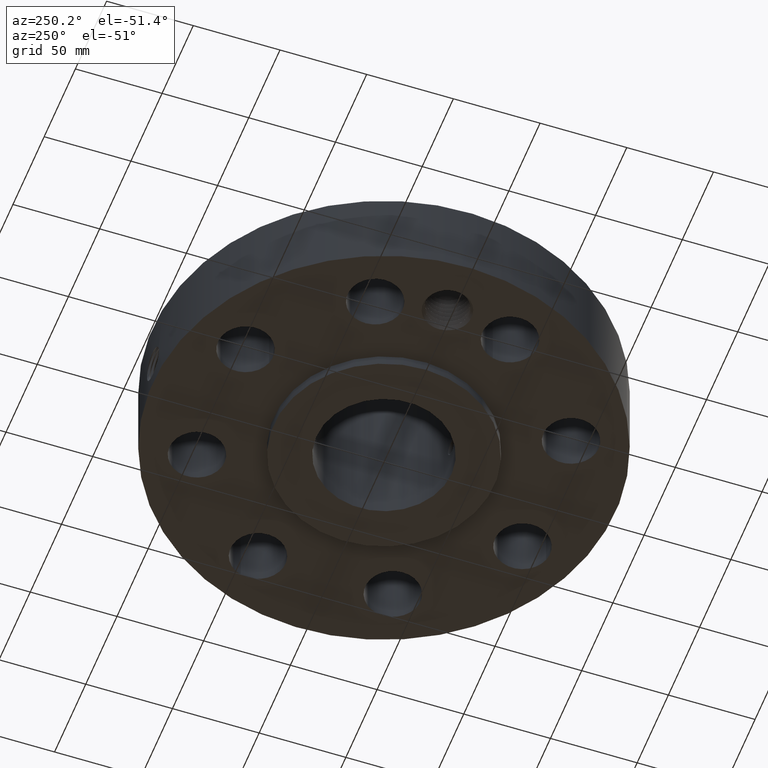
[diagram: clean part render]
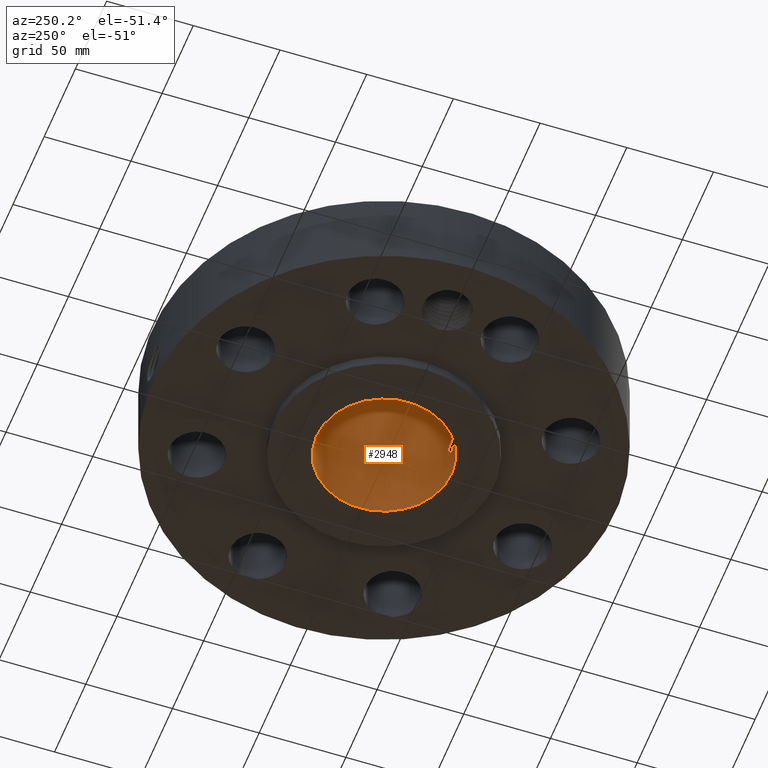
[diagram: same view with one face highlighted and labeled with its STEP entity id]
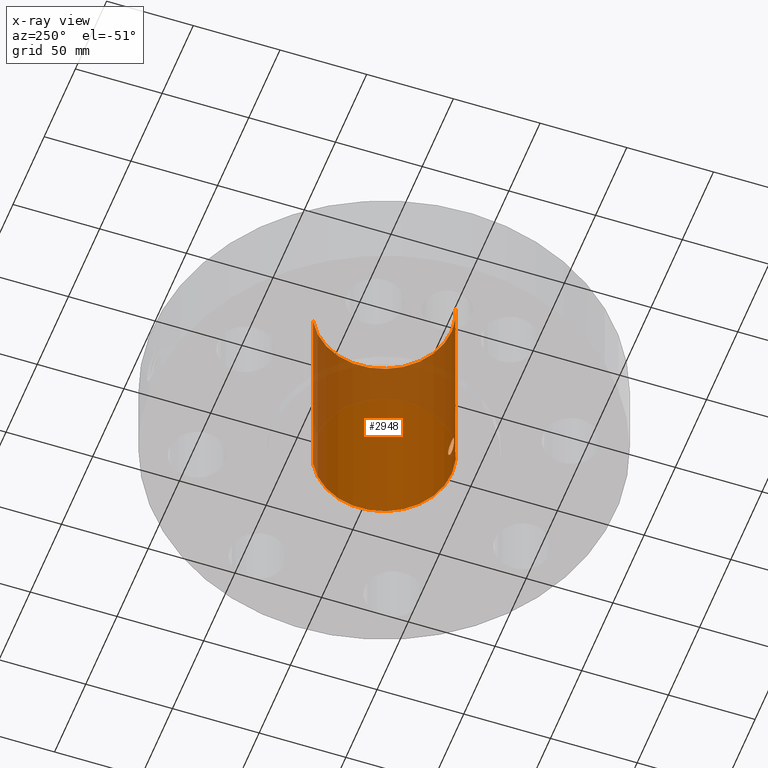
[diagram: x-ray of the same camera — body ghosted, the highlighted face saturated]
A machine part, auxiliary view. The second image highlights one B-rep face of the part: STEP entity #2948.
The next image is the same camera in x-ray: the body ghosted, the highlighted face saturated — about 38% of this face is hidden behind the body in this view.
In plain terms, the highlighted cylindrical surface (partial cylindrical patch) has radius 38.9636 mm, axis along (0, 0, -1).
Its self-contained STEP definition (entity closure, byte-faithful):
#2161=AXIS2_PLACEMENT_3D('Circle Axis2P3D',#2159,#2160,$) ;
#2879=AXIS2_PLACEMENT_3D('Cylinder Axis2P3D',#2876,#2877,#2878) ;
#2883=AXIS2_PLACEMENT_3D('Circle Axis2P3D',#2881,#2882,$) ;
#2159=CARTESIAN_POINT('Axis2P3D Location',(0.,0.,0.)) ;
#2163=CARTESIAN_POINT('Vertex',(0.735438776222,1.34621164995,-5.31508345647E-015)) ;
#2165=CARTESIAN_POINT('Vertex',(-0.735438776222,-1.34621164995,-5.31508345647E-015)) ;
#2876=CARTESIAN_POINT('Axis2P3D Location',(0.,0.,2.43500000001)) ;
#2881=CARTESIAN_POINT('Axis2P3D Location',(0.,0.,4.87000000002)) ;
#2885=CARTESIAN_POINT('Vertex',(0.735438776222,1.34621164995,4.87000000002)) ;
#2887=CARTESIAN_POINT('Vertex',(-0.735438776222,-1.34621164995,4.87000000002)) ;
#2890=CARTESIAN_POINT('Line Origine',(0.735438776222,1.34621164995,2.43500000001)) ;
#2895=CARTESIAN_POINT('Line Origine',(-0.735438776222,-1.34621164995,2.43500000001)) ;
#2907=CARTESIAN_POINT('Control Point',(0.164546730355,-1.52514929549,0.850107711515)) ;
#2908=CARTESIAN_POINT('Control Point',(0.153730987742,-1.52631619443,0.830309627461)) ;
#2909=CARTESIAN_POINT('Control Point',(0.1399431989,-1.52770675216,0.812148390875)) ;
#2910=CARTESIAN_POINT('Control Point',(0.123507748955,-1.52917958204,0.796208112031)) ;
#2911=CARTESIAN_POINT('Control Point',(0.0771300553233,-1.53257507292,0.763187347526)) ;
#2912=CARTESIAN_POINT('Control Point',(0.021117456955,-1.53443807468,0.74899752833)) ;
#2913=CARTESIAN_POINT('Control Point',(-0.0139156713078,-1.53452842349,0.74833651336)) ;
#2914=CARTESIAN_POINT('Control Point',(-0.0704492146842,-1.53291709887,0.760416237495)) ;
#2915=CARTESIAN_POINT('Control Point',(-0.118051609561,-1.52962023944,0.791691344334)) ;
#2916=CARTESIAN_POINT('Control Point',(-0.135083668777,-1.52815406454,0.807020195614)) ;
#2917=CARTESIAN_POINT('Control Point',(-0.174443725803,-1.52429835588,0.855045646798)) ;
#2918=CARTESIAN_POINT('Control Point',(-0.192228358507,-1.52190251018,0.916011178549)) ;
#2919=CARTESIAN_POINT('Control Point',(-0.192989830594,-1.52179279368,0.956827431149)) ;
#2920=CARTESIAN_POINT('Control Point',(-0.183177815633,-1.52313920758,0.995788315649)) ;
#2921=CARTESIAN_POINT('Control Point',(-0.164546730355,-1.52514929549,1.02989228849)) ;
#2922=CARTESIAN_POINT('Vertex',(0.164546730355,-1.52514929549,0.850107711515)) ;
#2924=CARTESIAN_POINT('Vertex',(-0.164546730355,-1.52514929549,1.02989228849)) ;
#2928=CARTESIAN_POINT('Control Point',(-0.164546730355,-1.52514929549,1.02989228849)) ;
#2929=CARTESIAN_POINT('Control Point',(-0.153730987742,-1.52631619443,1.04969037255)) ;
#2930=CARTESIAN_POINT('Control Point',(-0.1399431989,-1.52770675216,1.06785160913)) ;
#2931=CARTESIAN_POINT('Control Point',(-0.123507748954,-1.52917958204,1.08379188798)) ;
#2932=CARTESIAN_POINT('Control Point',(-0.0771300553212,-1.53257507292,1.11681265248)) ;
#2933=CARTESIAN_POINT('Control Point',(-0.0211174569524,-1.53443807468,1.13100247168)) ;
#2934=CARTESIAN_POINT('Control Point',(0.0139156713078,-1.53452842349,1.13166348665)) ;
#2935=CARTESIAN_POINT('Control Point',(0.0704492146732,-1.53291709887,1.11958376252)) ;
#2936=CARTESIAN_POINT('Control Point',(0.118051609543,-1.52962023944,1.08830865569)) ;
#2937=CARTESIAN_POINT('Control Point',(0.135083668793,-1.52815406454,1.07297980437)) ;
#2938=CARTESIAN_POINT('Control Point',(0.174443725811,-1.52429835588,1.02495435319)) ;
#2939=CARTESIAN_POINT('Control Point',(0.19222835851,-1.52190251018,0.963988821447)) ;
#2940=CARTESIAN_POINT('Control Point',(0.192989830597,-1.52179279367,0.923172568868)) ;
#2941=CARTESIAN_POINT('Control Point',(0.183177815635,-1.52313920758,0.884211684363)) ;
#2942=CARTESIAN_POINT('Control Point',(0.164546730355,-1.52514929549,0.850107711515)) ;
#2160=DIRECTION('Axis2P3D Direction',(0.,0.,-0.0393700787402)) ;
#2877=DIRECTION('Axis2P3D Direction',(0.,0.,-0.0393700787402)) ;
#2878=DIRECTION('Axis2P3D XDirection',(-0.0188750212049,-0.0345504945626,0.)) ;
#2882=DIRECTION('Axis2P3D Direction',(0.,0.,-0.0393700787402)) ;
#2891=DIRECTION('Vector Direction',(0.,0.,-0.0393700787402)) ;
#2896=DIRECTION('Vector Direction',(0.,0.,-0.0393700787402)) ;
#2892=VECTOR('Line Direction',#2891,0.0393700787402) ;
#2897=VECTOR('Line Direction',#2896,0.0393700787402) ;
#2901=ORIENTED_EDGE('',*,*,#2889,.F.) ;
#2902=ORIENTED_EDGE('',*,*,#2894,.T.) ;
#2903=ORIENTED_EDGE('',*,*,#2167,.T.) ;
#2904=ORIENTED_EDGE('',*,*,#2899,.F.) ;
#2945=ORIENTED_EDGE('',*,*,#2926,.F.) ;
#2946=ORIENTED_EDGE('',*,*,#2943,.F.) ;
#2947=FACE_BOUND('',#2944,.T.) ;
#2948=ADVANCED_FACE('PartBody',(#2905,#2947),#2880,.F.) ;
#2906=B_SPLINE_CURVE_WITH_KNOTS('',5,(#2907,#2908,#2909,#2910,#2911,#2912,#2913,#2914,#2915,#2916,#2917,#2918,#2919,#2920,#2921),.UNSPECIFIED.,.F.,.U.,(6,3,3,3,6),(0.,4.05727165988,10.1291862372,14.1895477954,21.1785615872),.UNSPECIFIED.) ;
#2927=B_SPLINE_CURVE_WITH_KNOTS('',5,(#2928,#2929,#2930,#2931,#2932,#2933,#2934,#2935,#2936,#2937,#2938,#2939,#2940,#2941,#2942),.UNSPECIFIED.,.F.,.U.,(6,3,3,3,6),(0.,4.05727165984,10.1291862373,14.1895477934,21.1785615861),.UNSPECIFIED.) ;
#2162=CIRCLE('generated circle',#2161,1.53400000001) ;
#2884=CIRCLE('generated circle',#2883,1.53400000001) ;
#2880=CYLINDRICAL_SURFACE('generated cylinder',#2879,1.53400000001) ;
#2167=EDGE_CURVE('',#2164,#2166,#2162,.T.) ;
#2889=EDGE_CURVE('',#2886,#2888,#2884,.T.) ;
#2894=EDGE_CURVE('',#2886,#2164,#2893,.T.) ;
#2899=EDGE_CURVE('',#2888,#2166,#2898,.T.) ;
#2926=EDGE_CURVE('',#2923,#2925,#2906,.T.) ;
#2943=EDGE_CURVE('',#2925,#2923,#2927,.T.) ;
#2900=EDGE_LOOP('',(#2901,#2902,#2903,#2904)) ;
#2944=EDGE_LOOP('',(#2945,#2946)) ;
#2905=FACE_OUTER_BOUND('',#2900,.T.) ;
#2893=LINE('Line',#2890,#2892) ;
#2898=LINE('Line',#2895,#2897) ;
#2164=VERTEX_POINT('',#2163) ;
#2166=VERTEX_POINT('',#2165) ;
#2886=VERTEX_POINT('',#2885) ;
#2888=VERTEX_POINT('',#2887) ;
#2923=VERTEX_POINT('',#2922) ;
#2925=VERTEX_POINT('',#2924) ;